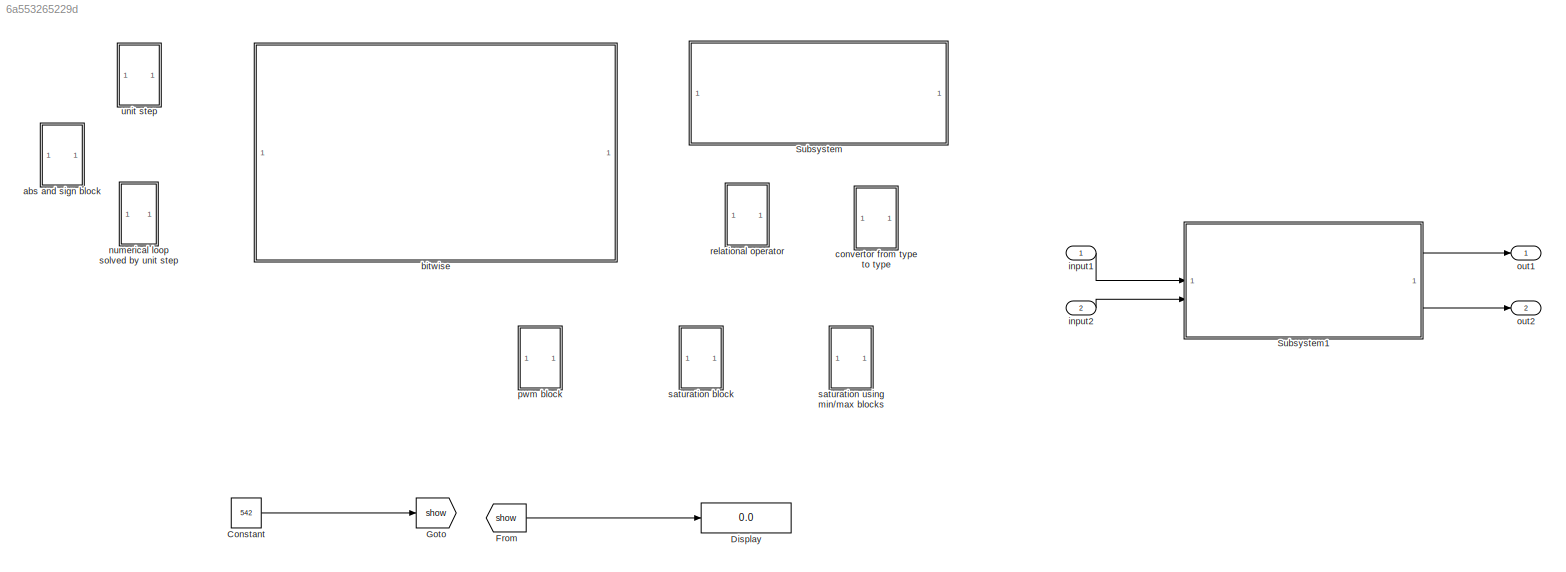
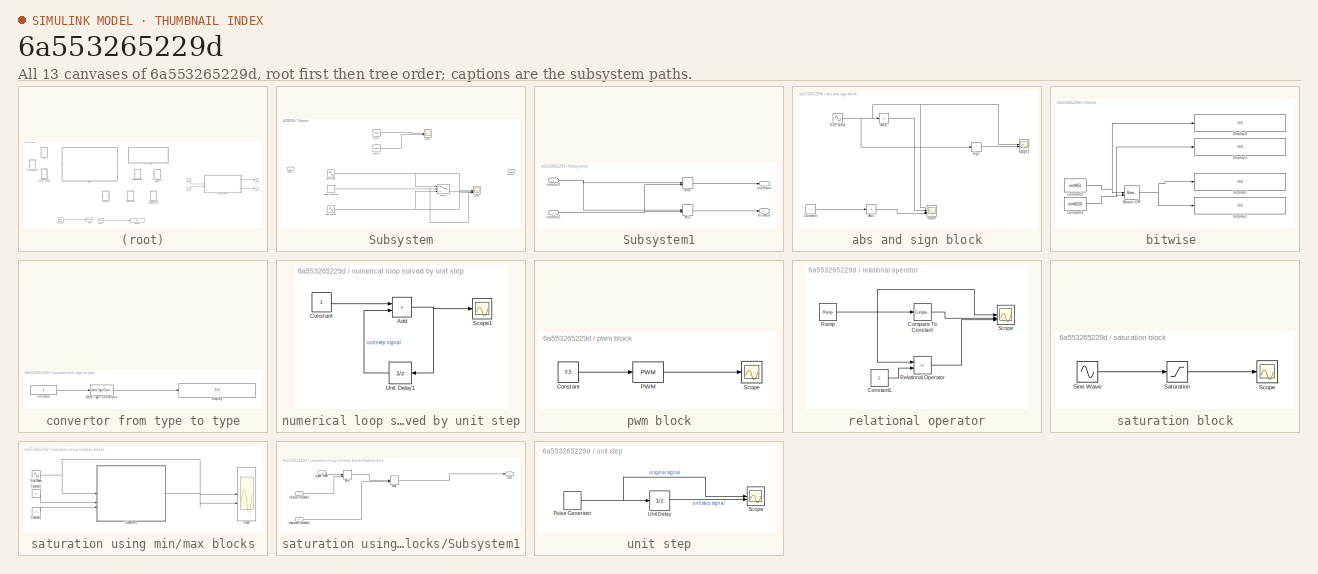
[diagram: thumbnail index - all 13 canvases of the model, root first then tree order]
MODEL slx_6a553265229d
KIND model
CONFIG AbsTol = auto
CONFIG EnableMultiTasking = off
CONFIG FixedStep = 0.1
CONFIG MaxStep = auto
CONFIG MinStep = auto
CONFIG RelTol = auto
CONFIG SampleTimeConstraint = Unconstrained
CONFIG SolverName = FixedStepDiscrete
CONFIG StartTime = 0.0
CONFIG StopTime = 10
BLOCK [Constant] Constant
  Commented = on
  Value = 542
BLOCK [Display] Display
  Commented = on
  Decimation = 1
BLOCK [From] From
  Commented = on
  GotoTag = show
BLOCK [Goto] Goto
  Commented = on
  GotoTag = show
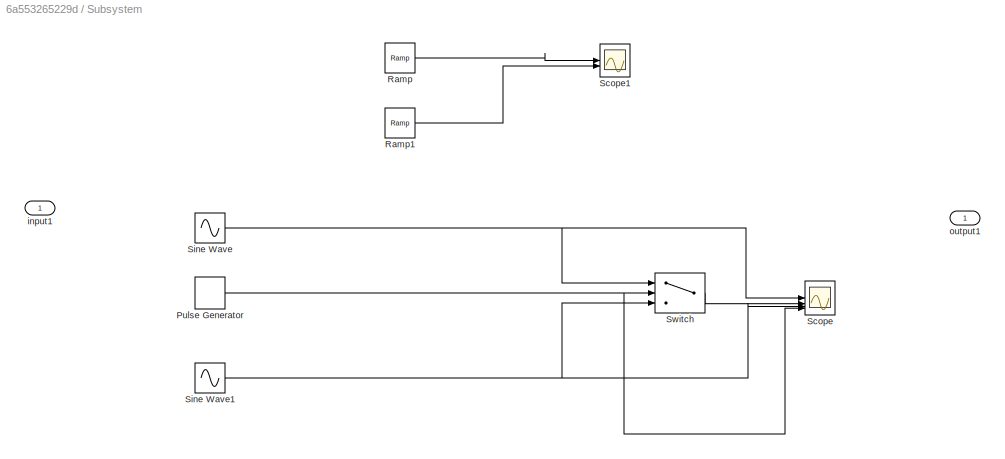
BLOCK [SubSystem] Subsystem
  Commented = on
BLOCK [DiscretePulseGenerator] Subsystem/Pulse Generator
  Period = 10
  PulseType = Time based
  PulseWidth = 50
BLOCK [Reference] Subsystem/Ramp  REF=simulink/Sources/Ramp
  SourceBlock = simulink/Sources/Ramp
  SourceType = Ramp
BLOCK [Reference] Subsystem/Ramp1  REF=simulink/Sources/Ramp
  SourceBlock = simulink/Sources/Ramp
  SourceType = Ramp
BLOCK [Scope] Subsystem/Scope
  Floating = off
  NumInputPorts = 4
  ScopeSpecificationString = Simulink.scopes.TimeScopeBlockCfg('CurrentConfiguration', extmgr.ConfigurationSet(extmgr.Configuration('Core','General UI',true,'FigureColor',[0.894117647058824 0.941176470588235 0.901960784313726]),extmgr.Configuration('Core','Source UI',true),extmgr.Configuration('Sources','WiredSimulink',true),extmgr.Configuration('Visuals','Time Domain',true,'SerializedDisplays',{struct('MinYLimReal','-1.25','...<+2354ch>
BLOCK [Scope] Subsystem/Scope1
  Floating = off
  NumInputPorts = 2
  ScopeSpecificationString = Simulink.scopes.TimeScopeBlockCfg('CurrentConfiguration', extmgr.ConfigurationSet(extmgr.Configuration('Core','General UI',true),extmgr.Configuration('Core','Source UI',true),extmgr.Configuration('Sources','WiredSimulink',true,'DataLoggingVariableName','ScopeData1'),extmgr.Configuration('Visuals','Time Domain',true,'SerializedDisplays',{struct('MinYLimReal','2.5','MaxYLimReal','27.5','YLabelReal',...<+2054ch>
BLOCK [Sin] Subsystem/Sine Wave
  SampleTime = 0
BLOCK [Sin] Subsystem/Sine Wave1
  Phase = -pi
  SampleTime = 0
BLOCK [Switch] Subsystem/Switch
  Criteria = u2 > Threshold
  InputSameDT = off
  SaturateOnIntegerOverflow = off
BLOCK [Inport] Subsystem/input1
BLOCK [Outport] Subsystem/output1
BLOCK [SubSystem] Subsystem1
BLOCK [MinMax] Subsystem1/Max
  Function = max
  Inputs = 2
BLOCK [MinMax] Subsystem1/Min
  Inputs = 2
BLOCK [Outport] Subsystem1/maxNum
BLOCK [Outport] Subsystem1/minNum
  Port = 2
BLOCK [Inport] Subsystem1/number1
BLOCK [Inport] Subsystem1/number2
  Port = 2
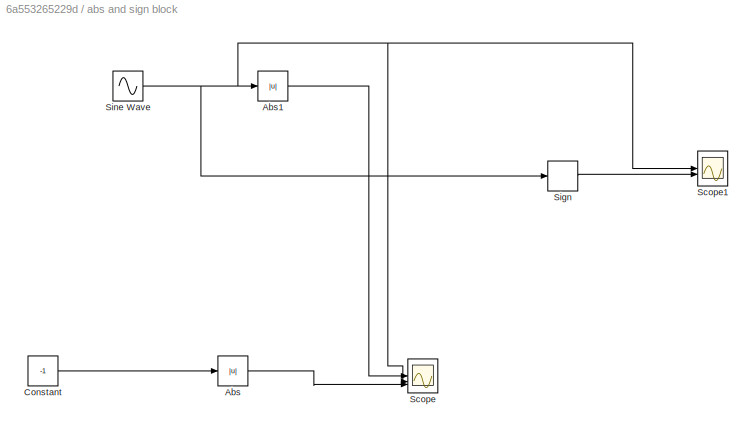
BLOCK [SubSystem] abs and sign block
  Commented = on
BLOCK [Abs] abs and sign block/Abs
  RndMeth = Zero
  SaturateOnIntegerOverflow = off
BLOCK [Abs] abs and sign block/Abs1
  LockScale = on
  RndMeth = Zero
  ZeroCross = off
BLOCK [Constant] abs and sign block/Constant
  Value = -1
BLOCK [Scope] abs and sign block/Scope
  Floating = off
  NumInputPorts = 3
  ScopeSpecificationString = Simulink.scopes.TimeScopeBlockCfg('CurrentConfiguration', extmgr.ConfigurationSet(extmgr.Configuration('Core','General UI',true),extmgr.Configuration('Core','Source UI',true),extmgr.Configuration('Sources','WiredSimulink',true,'DataLoggingVariableName','ScopeData1'),extmgr.Configuration('Visuals','Time Domain',true,'SerializedDisplays',{struct('MinYLimReal','-1.24952','MaxYLimReal','1.24995','YLab...<+1495ch>
BLOCK [Scope] abs and sign block/Scope1
  Floating = off
  NumInputPorts = 2
  ScopeSpecificationString = Simulink.scopes.TimeScopeBlockCfg('CurrentConfiguration', extmgr.ConfigurationSet(extmgr.Configuration('Core','General UI',true),extmgr.Configuration('Core','Source UI',true),extmgr.Configuration('Sources','WiredSimulink',true,'DataLoggingVariableName','ScopeData2'),extmgr.Configuration('Visuals','Time Domain',true,'SerializedDisplays',{struct('MinYLimReal','-1.25','MaxYLimReal','1.25','YLabelReal...<+1471ch>
BLOCK [Signum] abs and sign block/Sign
BLOCK [Sin] abs and sign block/Sine Wave
  SampleTime = 0
BLOCK [SubSystem] bitwise 
  Commented = on
BLOCK [Reference] bitwise /Bitwise OR  REF=simulink/Logic and Bit
Operations/Bitwise
Operator
  LibrarySourceBlock = simulink/Quick Insert/Logic and Bit\nOperations/Bitwise OR
  SourceBlock = simulink/Logic and Bit\nOperations/Bitwise\nOperator
  SourceType = Bitwise Operator
BLOCK [Constant] bitwise /Constant2
  Value = uint8(5)
BLOCK [Constant] bitwise /Constant3
  Value = uint8(10)
BLOCK [Display] bitwise /Display1
  Decimation = 1
  Format = binary (Stored Integer)
BLOCK [Display] bitwise /Display2
  Decimation = 1
  Format = long
BLOCK [Display] bitwise /Display3
  Decimation = 1
  Format = binary (Stored Integer)
BLOCK [Display] bitwise /Display4
  Decimation = 1
  Format = binary (Stored Integer)
BLOCK [SubSystem] convertor from type to type
  Commented = on
BLOCK [Constant] convertor from type to type/Constant
  Value = x
BLOCK [DataTypeConversion] convertor from type to type/Data Type Conversion
  OutDataTypeStr = single
  RndMeth = Round
  SaturateOnIntegerOverflow = off
BLOCK [Display] convertor from type to type/Display
  Decimation = 1
  Format = long
BLOCK [Inport] input1
BLOCK [Inport] input2
  Port = 2
BLOCK [SubSystem] numerical loop solved by unit step
  Commented = on
BLOCK [Sum] numerical loop solved by unit step/Add
  IconShape = rectangular
BLOCK [Constant] numerical loop solved by unit step/Constant
BLOCK [Scope] numerical loop solved by unit step/Scope1
  Floating = off
  NumInputPorts = 1
  ScopeSpecificationString = Simulink.scopes.TimeScopeBlockCfg('CurrentConfiguration', extmgr.ConfigurationSet(extmgr.Configuration('Core','General UI',true),extmgr.Configuration('Core','Source UI',true),extmgr.Configuration('Sources','WiredSimulink',true,'DataLoggingVariableName','ScopeData2'),extmgr.Configuration('Visuals','Time Domain',true,'SerializedDisplays',{struct('MinYLimReal','-0.25','MaxYLimReal','12.25','YLabelRea...<+1348ch>
BLOCK [UnitDelay] numerical loop solved by unit step/Unit Delay1
  HasFrameUpgradeWarning = on
  NameLocation = top
  SampleTime = -1
BLOCK [Outport] out1
BLOCK [Outport] out2
  Port = 2
BLOCK [SubSystem] pwm block
  Commented = on
BLOCK [Constant] pwm block/Constant
  Value = 0.5
BLOCK [Reference] pwm block/PWM  REF=simulink/Discontinuities/PWM
  DisableCoverage = on
  SourceBlock = simulink/Discontinuities/PWM
  SourceType = PWM
BLOCK [Scope] pwm block/Scope
  Floating = off
  NumInputPorts = 1
  ScopeSpecificationString = Simulink.scopes.TimeScopeBlockCfg('CurrentConfiguration', extmgr.ConfigurationSet(extmgr.Configuration('Core','General UI',true),extmgr.Configuration('Core','Source UI',true),extmgr.Configuration('Sources','WiredSimulink',true,'DataLoggingVariableName','ScopeData3'),extmgr.Configuration('Visuals','Time Domain',true,'SerializedDisplays',{struct('MinYLimReal','-0.125','MaxYLimReal','1.125','YLabelRe...<+1350ch>
BLOCK [SubSystem] relational operator
  Commented = on
BLOCK [Reference] relational operator/Compare To Constant  REF=simulink/Logic and Bit
Operations/Compare
To Constant
  SourceBlock = simulink/Logic and Bit\nOperations/Compare\nTo Constant
  SourceType = Compare To Constant
BLOCK [Constant] relational operator/Constant1
  Value = 5
BLOCK [Reference] relational operator/Ramp  REF=simulink/Sources/Ramp
  SourceBlock = simulink/Sources/Ramp
  SourceType = Ramp
BLOCK [RelationalOperator] relational operator/Relational Operator
  InputSameDT = off
  Operator = ==
  OutDataTypeStr = boolean
  RndMeth = Simplest
BLOCK [Scope] relational operator/Scope
  Floating = off
  NumInputPorts = 3
  ScopeSpecificationString = Simulink.scopes.TimeScopeBlockCfg('CurrentConfiguration', extmgr.ConfigurationSet(extmgr.Configuration('Core','General UI',true),extmgr.Configuration('Core','Source UI',true),extmgr.Configuration('Sources','WiredSimulink',true,'DataLoggingVariableName','ScopeData1'),extmgr.Configuration('Visuals','Time Domain',true,'SerializedDisplays',{struct('MinYLimReal','-1.75','MaxYLimReal','10.75','YLabelRea...<+1421ch>
BLOCK [SubSystem] saturation block
  Commented = on
BLOCK [Saturate] saturation block/Saturation
BLOCK [Scope] saturation block/Scope
  Floating = off
  NumInputPorts = 1
  ScopeSpecificationString = Simulink.scopes.TimeScopeBlockCfg('CurrentConfiguration', extmgr.ConfigurationSet(extmgr.Configuration('Core','General UI',true),extmgr.Configuration('Core','Source UI',true),extmgr.Configuration('Sources','WiredSimulink',true,'DataLoggingVariableName','ScopeData4'),extmgr.Configuration('Visuals','Time Domain',true,'SerializedDisplays',{struct('MinYLimReal','-0.625','MaxYLimReal','0.625','YLabelRe...<+1357ch>
BLOCK [Sin] saturation block/Sine Wave
  SampleTime = 0
BLOCK [SubSystem] saturation using min//max blocks
  Commented = on
BLOCK [Constant] saturation using min//max blocks/Constant1
  Value = 0.5
BLOCK [Constant] saturation using min//max blocks/Constant2
  Value = -0.5
BLOCK [Scope] saturation using min//max blocks/Scope
  Floating = off
  NumInputPorts = 2
  ScopeSpecificationString = Simulink.scopes.TimeScopeBlockCfg('CurrentConfiguration', extmgr.ConfigurationSet(extmgr.Configuration('Core','General UI',true),extmgr.Configuration('Core','Source UI',true),extmgr.Configuration('Sources','WiredSimulink',true,'DataLoggingVariableName','ScopeData1'),extmgr.Configuration('Visuals','Time Domain',true,'SerializedDisplays',{struct('MinYLimReal','-1.24563','MaxYLimReal','1.24904','YLab...<+1407ch>
BLOCK [Sin] saturation using min//max blocks/Sine Wave
  SampleTime = 0
BLOCK [SubSystem] saturation using min//max blocks/Subsystem1
BLOCK [MinMax] saturation using min//max blocks/Subsystem1/Max
  Function = max
  Inputs = 2
BLOCK [MinMax] saturation using min//max blocks/Subsystem1/Min
  Inputs = 2
BLOCK [Outport] saturation using min//max blocks/Subsystem1/Out1
BLOCK [Inport] saturation using min//max blocks/Subsystem1/maximum threshold
  Port = 3
BLOCK [Inport] saturation using min//max blocks/Subsystem1/minmum threshold
  Port = 2
BLOCK [Inport] saturation using min//max blocks/Subsystem1/signal wave
BLOCK [SubSystem] unit step
  Commented = on
BLOCK [DiscretePulseGenerator] unit step/Pulse Generator
  Period = 1
  PulseType = Time based
  PulseWidth = 50
BLOCK [Scope] unit step/Scope
  Floating = off
  NumInputPorts = 2
  ScopeSpecificationString = Simulink.scopes.TimeScopeBlockCfg('CurrentConfiguration', extmgr.ConfigurationSet(extmgr.Configuration('Core','General UI',true),extmgr.Configuration('Core','Source UI',true),extmgr.Configuration('Sources','WiredSimulink',true,'DataLoggingVariableName','ScopeData1'),extmgr.Configuration('Visuals','Time Domain',true,'SerializedDisplays',{struct('MinYLimReal','-0.125','MaxYLimReal','1.125','YLabelRe...<+2016ch>
BLOCK [UnitDelay] unit step/Unit Delay
  HasFrameUpgradeWarning = on
  SampleTime = -1
LINE Constant:1 -> Goto:1
LINE From:1 -> Display:1
NET Subsystem/Pulse Generator:1 -> Subsystem/Scope:4, Subsystem/Switch:2
LINE Subsystem/Ramp1:1 -> Subsystem/Scope1:2
LINE Subsystem/Ramp:1 -> Subsystem/Scope1:1
NET Subsystem/Sine Wave1:1 -> Subsystem/Scope:3, Subsystem/Switch:3
NET Subsystem/Sine Wave:1 -> Subsystem/Scope:1, Subsystem/Switch:1
LINE Subsystem/Switch:1 -> Subsystem/Scope:2
LINE Subsystem1/Max:1 -> Subsystem1/maxNum:1
LINE Subsystem1/Min:1 -> Subsystem1/minNum:1
NET Subsystem1/number1:1 -> Subsystem1/Max:1, Subsystem1/Min:1
NET Subsystem1/number2:1 -> Subsystem1/Max:2, Subsystem1/Min:2
LINE Subsystem1:1 -> out1:1
LINE Subsystem1:2 -> out2:1
LINE abs and sign block/Abs1:1 -> abs and sign block/Scope:2
LINE abs and sign block/Abs:1 -> abs and sign block/Scope:3
LINE abs and sign block/Constant:1 -> abs and sign block/Abs:1
LINE abs and sign block/Sign:1 -> abs and sign block/Scope1:2
NET abs and sign block/Sine Wave:1 -> abs and sign block/Abs1:1, abs and sign block/Scope1:1, abs and sign block/Scope:1, abs and sign block/Sign:1
NET bitwise /Bitwise OR:1 -> bitwise /Display1:1, bitwise /Display2:1
NET bitwise /Constant2:1 -> bitwise /Bitwise OR:1, bitwise /Display4:1
NET bitwise /Constant3:1 -> bitwise /Bitwise OR:2, bitwise /Display3:1
LINE convertor from type to type/Constant:1 -> convertor from type to type/Data Type Conversion:1
LINE convertor from type to type/Data Type Conversion:1 -> convertor from type to type/Display:1
LINE input1:1 -> Subsystem1:1
LINE input2:1 -> Subsystem1:2
NET numerical loop solved by unit step/Add:1 -> numerical loop solved by unit step/Scope1:1, numerical loop solved by unit step/Unit Delay1:1
LINE numerical loop solved by unit step/Constant:1 -> numerical loop solved by unit step/Add:1
LINE numerical loop solved by unit step/Unit Delay1:1 -> numerical loop solved by unit step/Add:2
LINE pwm block/Constant:1 -> pwm block/PWM:1
LINE pwm block/PWM:1 -> pwm block/Scope:1
LINE relational operator/Compare To Constant:1 -> relational operator/Scope:2
LINE relational operator/Constant1:1 -> relational operator/Relational Operator:2
NET relational operator/Ramp:1 -> relational operator/Compare To Constant:1, relational operator/Relational Operator:1, relational operator/Scope:1
LINE relational operator/Relational Operator:1 -> relational operator/Scope:3
LINE saturation block/Saturation:1 -> saturation block/Scope:1
LINE saturation block/Sine Wave:1 -> saturation block/Saturation:1
LINE saturation using min//max blocks/Constant1:1 -> saturation using min//max blocks/Subsystem1:2
LINE saturation using min//max blocks/Constant2:1 -> saturation using min//max blocks/Subsystem1:3
NET saturation using min//max blocks/Sine Wave:1 -> saturation using min//max blocks/Scope:1, saturation using min//max blocks/Subsystem1:1
LINE saturation using min//max blocks/Subsystem1/Max:1 -> saturation using min//max blocks/Subsystem1/Out1:1
LINE saturation using min//max blocks/Subsystem1/Min:1 -> saturation using min//max blocks/Subsystem1/Max:1
LINE saturation using min//max blocks/Subsystem1/maximum threshold:1 -> saturation using min//max blocks/Subsystem1/Max:2
LINE saturation using min//max blocks/Subsystem1/minmum threshold:1 -> saturation using min//max blocks/Subsystem1/Min:2
LINE saturation using min//max blocks/Subsystem1/signal wave:1 -> saturation using min//max blocks/Subsystem1/Min:1
LINE saturation using min//max blocks/Subsystem1:1 -> saturation using min//max blocks/Scope:2
NET unit step/Pulse Generator:1 -> unit step/Scope:1, unit step/Unit Delay:1
LINE unit step/Unit Delay:1 -> unit step/Scope:2
note: NET lines group one-source signal fan-out (src -> all destinations, sorted); 1:1 wires keep LINE
